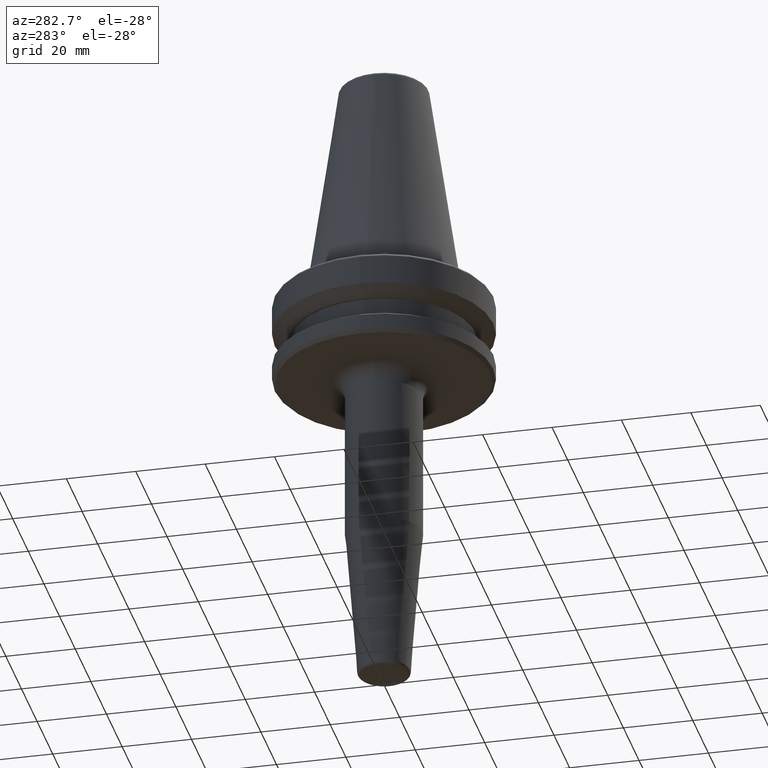
[diagram: clean part render]
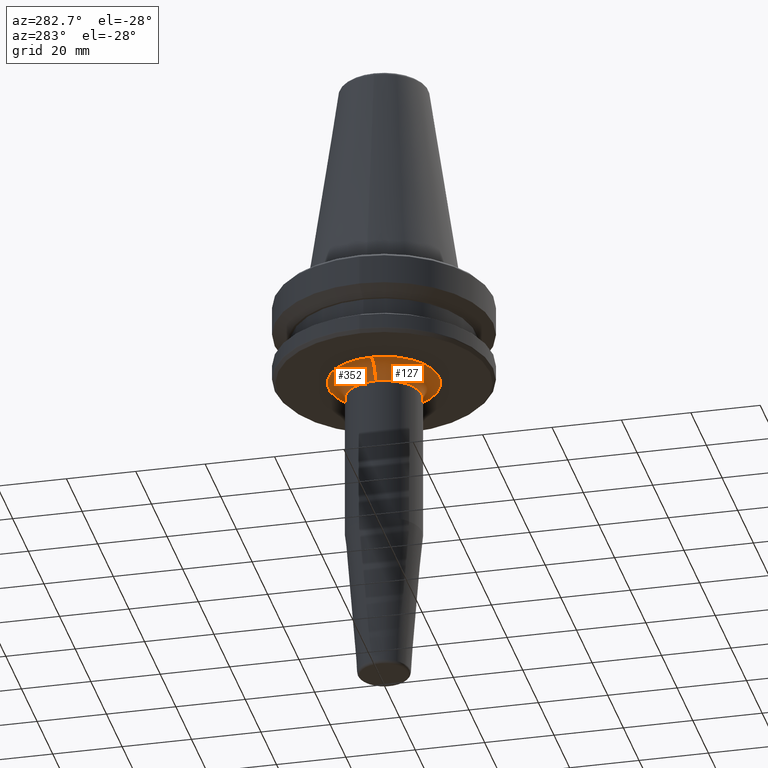
[diagram: same view with one multi-face feature highlighted, each face labeled with its STEP entity id]
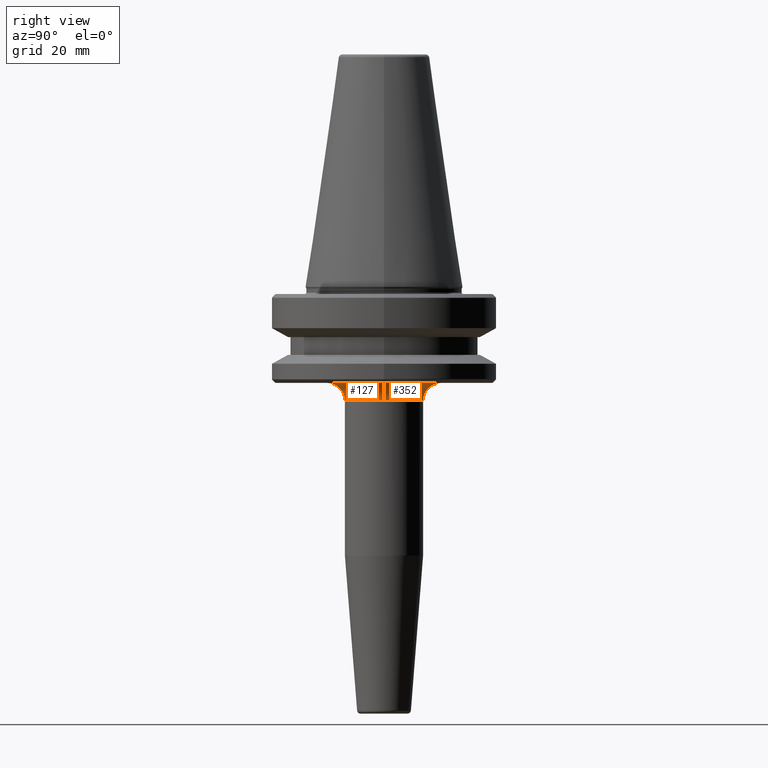
[diagram: same view with one multi-face feature highlighted, each face labeled with its STEP entity id]
A machine part, auxiliary view. The highlighted faces form ONE feature: a constant-radius fillet chain: 2 tangent blend faces with common blend radius 5 mm. The faces share edges in the B-rep.
A second angle (right view) of the same feature is appended — it is thin or edge-on in the first view.
Their STEP definitions:
[1] entity #127 (Torus):
#4 = ORIENTED_EDGE ( 'NONE', *, *, #917, .F. ) ;
#45 = VERTEX_POINT ( 'NONE', #950 ) ;
#47 = CIRCLE ( 'NONE', #189, 11.00000000000001100 ) ;
#65 = DIRECTION ( 'NONE',  ( -1.000000000000000000, 0.0000000000000000000, 0.0000000000000000000 ) ) ;
#104 = AXIS2_PLACEMENT_3D ( 'NONE', #993, #423, #1164 ) ;
#107 = ORIENTED_EDGE ( 'NONE', *, *, #258, .F. ) ;
#110 = CARTESIAN_POINT ( 'NONE',  ( 16.00000000000001100, 2.235968026830329600E-015, -27.00000000000000400 ) ) ;
#127 = ADVANCED_FACE ( 'NONE', ( #434 ), #691, .F. ) ;
#130 = CARTESIAN_POINT ( 'NONE',  ( 0.0000000000000000000, 2.765331481945631400E-016, -32.00000000000000000 ) ) ;
#166 = DIRECTION ( 'NONE',  ( -0.0000000000000000000, -0.0000000000000000000, 1.000000000000000000 ) ) ;
#171 = VERTEX_POINT ( 'NONE', #368 ) ;
#189 = AXIS2_PLACEMENT_3D ( 'NONE', #589, #699, #65 ) ;
#209 = VERTEX_POINT ( 'NONE', #717 ) ;
#210 = DIRECTION ( 'NONE',  ( -0.0000000000000000000, -1.000000000000000000, -0.0000000000000000000 ) ) ;
#236 = DIRECTION ( 'NONE',  ( -1.224646799147353200E-016, 1.000000000000000000, 0.0000000000000000000 ) ) ;
#258 = EDGE_CURVE ( 'NONE', #209, #840, #499, .T. ) ;
#368 = CARTESIAN_POINT ( 'NONE',  ( 11.00000000000001100, 1.929806327043491700E-015, -32.00000000000000000 ) ) ;
#372 = CARTESIAN_POINT ( 'NONE',  ( 0.0000000000000000000, 2.765331481945631400E-016, -27.00000000000000400 ) ) ;
#376 = EDGE_LOOP ( 'NONE', ( #944, #931, #4, #107, #897 ) ) ;
#388 = CARTESIAN_POINT ( 'NONE',  ( -16.00000000000001100, 2.765331481945631400E-016, -27.00000000000000400 ) ) ;
#403 = VERTEX_POINT ( 'NONE', #110 ) ;
#423 = DIRECTION ( 'NONE',  ( 0.0000000000000000000, 0.0000000000000000000, -1.000000000000000000 ) ) ;
#431 = CIRCLE ( 'NONE', #977, 5.000000000000000900 ) ;
#432 = DIRECTION ( 'NONE',  ( -1.000000000000000000, 0.0000000000000000000, 0.0000000000000000000 ) ) ;
#434 = FACE_OUTER_BOUND ( 'NONE', #376, .T. ) ;
#497 = CARTESIAN_POINT ( 'NONE',  ( 16.00000000000001100, 2.235968026830329600E-015, -32.00000000000000000 ) ) ;
#499 = CIRCLE ( 'NONE', #1047, 4.999999999999997300 ) ;
#525 = CARTESIAN_POINT ( 'NONE',  ( -16.00000000000001100, 2.765331481945631400E-016, -32.00000000000000000 ) ) ;
#549 = DIRECTION ( 'NONE',  ( 0.0000000000000000000, 0.0000000000000000000, -1.000000000000000000 ) ) ;
#584 = EDGE_CURVE ( 'NONE', #171, #403, #431, .T. ) ;
#589 = CARTESIAN_POINT ( 'NONE',  ( 0.0000000000000000000, 2.765331481945631400E-016, -32.00000000000000000 ) ) ;
#633 = DIRECTION ( 'NONE',  ( 0.0000000000000000000, 0.0000000000000000000, -1.000000000000000000 ) ) ;
#691 = TOROIDAL_SURFACE ( 'NONE', #1189, 16.00000000000001100, 5.000000000000000000 ) ;
#699 = DIRECTION ( 'NONE',  ( 0.0000000000000000000, 0.0000000000000000000, -1.000000000000000000 ) ) ;
#705 = EDGE_CURVE ( 'NONE', #171, #45, #47, .T. ) ;
#717 = CARTESIAN_POINT ( 'NONE',  ( -11.00000000000001100, 2.765331481945631400E-016, -32.00000000000000000 ) ) ;
#791 = CIRCLE ( 'NONE', #104, 11.00000000000001100 ) ;
#840 = VERTEX_POINT ( 'NONE', #388 ) ;
#853 = CIRCLE ( 'NONE', #1103, 16.00000000000001100 ) ;
#897 = ORIENTED_EDGE ( 'NONE', *, *, #967, .F. ) ;
#917 = EDGE_CURVE ( 'NONE', #840, #403, #853, .T. ) ;
#931 = ORIENTED_EDGE ( 'NONE', *, *, #584, .T. ) ;
#944 = ORIENTED_EDGE ( 'NONE', *, *, #705, .F. ) ;
#950 = CARTESIAN_POINT ( 'NONE',  ( 1.347111479062090400E-015, -11.00000000000001100, -32.00000000000000000 ) ) ;
#967 = EDGE_CURVE ( 'NONE', #45, #209, #791, .T. ) ;
#977 = AXIS2_PLACEMENT_3D ( 'NONE', #497, #236, #1108 ) ;
#993 = CARTESIAN_POINT ( 'NONE',  ( 0.0000000000000000000, 2.765331481945631400E-016, -32.00000000000000000 ) ) ;
#1047 = AXIS2_PLACEMENT_3D ( 'NONE', #525, #210, #633 ) ;
#1103 = AXIS2_PLACEMENT_3D ( 'NONE', #372, #166, #1176 ) ;
#1108 = DIRECTION ( 'NONE',  ( -1.000000000000000000, -1.224646799147353000E-016, 0.0000000000000000000 ) ) ;
#1164 = DIRECTION ( 'NONE',  ( -1.000000000000000000, 0.0000000000000000000, 0.0000000000000000000 ) ) ;
#1176 = DIRECTION ( 'NONE',  ( -1.000000000000000000, 0.0000000000000000000, 0.0000000000000000000 ) ) ;
#1189 = AXIS2_PLACEMENT_3D ( 'NONE', #130, #549, #432 ) ;
[2] entity #352 (Torus):
#10 = ORIENTED_EDGE ( 'NONE', *, *, #446, .F. ) ;
#53 = CARTESIAN_POINT ( 'NONE',  ( 0.0000000000000000000, 2.765331481945631400E-016, -27.00000000000000400 ) ) ;
#54 = CIRCLE ( 'NONE', #1223, 11.00000000000001100 ) ;
#70 = ORIENTED_EDGE ( 'NONE', *, *, #258, .T. ) ;
#110 = CARTESIAN_POINT ( 'NONE',  ( 16.00000000000001100, 2.235968026830329600E-015, -27.00000000000000400 ) ) ;
#171 = VERTEX_POINT ( 'NONE', #368 ) ;
#193 = EDGE_LOOP ( 'NONE', ( #198, #10, #698, #70, #1160 ) ) ;
#198 = ORIENTED_EDGE ( 'NONE', *, *, #584, .F. ) ;
#209 = VERTEX_POINT ( 'NONE', #717 ) ;
#210 = DIRECTION ( 'NONE',  ( -0.0000000000000000000, -1.000000000000000000, -0.0000000000000000000 ) ) ;
#215 = DIRECTION ( 'NONE',  ( -1.000000000000000000, 0.0000000000000000000, 0.0000000000000000000 ) ) ;
#236 = DIRECTION ( 'NONE',  ( -1.224646799147353200E-016, 1.000000000000000000, 0.0000000000000000000 ) ) ;
#258 = EDGE_CURVE ( 'NONE', #209, #840, #499, .T. ) ;
#271 = VERTEX_POINT ( 'NONE', #760 ) ;
#302 = AXIS2_PLACEMENT_3D ( 'NONE', #53, #1041, #672 ) ;
#317 = EDGE_CURVE ( 'NONE', #403, #840, #473, .T. ) ;
#352 = ADVANCED_FACE ( 'NONE', ( #876 ), #392, .F. ) ;
#358 = CIRCLE ( 'NONE', #1258, 11.00000000000001100 ) ;
#362 = EDGE_CURVE ( 'NONE', #209, #271, #358, .T. ) ;
#363 = DIRECTION ( 'NONE',  ( 0.0000000000000000000, 0.0000000000000000000, -1.000000000000000000 ) ) ;
#368 = CARTESIAN_POINT ( 'NONE',  ( 11.00000000000001100, 1.929806327043491700E-015, -32.00000000000000000 ) ) ;
#388 = CARTESIAN_POINT ( 'NONE',  ( -16.00000000000001100, 2.765331481945631400E-016, -27.00000000000000400 ) ) ;
#392 = TOROIDAL_SURFACE ( 'NONE', #452, 16.00000000000001100, 5.000000000000000000 ) ;
#403 = VERTEX_POINT ( 'NONE', #110 ) ;
#431 = CIRCLE ( 'NONE', #977, 5.000000000000000900 ) ;
#446 = EDGE_CURVE ( 'NONE', #271, #171, #54, .T. ) ;
#452 = AXIS2_PLACEMENT_3D ( 'NONE', #573, #916, #640 ) ;
#473 = CIRCLE ( 'NONE', #302, 16.00000000000001100 ) ;
#497 = CARTESIAN_POINT ( 'NONE',  ( 16.00000000000001100, 2.235968026830329600E-015, -32.00000000000000000 ) ) ;
#499 = CIRCLE ( 'NONE', #1047, 4.999999999999997300 ) ;
#525 = CARTESIAN_POINT ( 'NONE',  ( -16.00000000000001100, 2.765331481945631400E-016, -32.00000000000000000 ) ) ;
#573 = CARTESIAN_POINT ( 'NONE',  ( 0.0000000000000000000, 2.765331481945631400E-016, -32.00000000000000000 ) ) ;
#584 = EDGE_CURVE ( 'NONE', #171, #403, #431, .T. ) ;
#618 = DIRECTION ( 'NONE',  ( 0.0000000000000000000, 0.0000000000000000000, -1.000000000000000000 ) ) ;
#623 = DIRECTION ( 'NONE',  ( -1.000000000000000000, 0.0000000000000000000, 0.0000000000000000000 ) ) ;
#633 = DIRECTION ( 'NONE',  ( 0.0000000000000000000, 0.0000000000000000000, -1.000000000000000000 ) ) ;
#640 = DIRECTION ( 'NONE',  ( -1.000000000000000000, 0.0000000000000000000, 0.0000000000000000000 ) ) ;
#672 = DIRECTION ( 'NONE',  ( -1.000000000000000000, 0.0000000000000000000, 0.0000000000000000000 ) ) ;
#698 = ORIENTED_EDGE ( 'NONE', *, *, #362, .F. ) ;
#717 = CARTESIAN_POINT ( 'NONE',  ( -11.00000000000001100, 2.765331481945631400E-016, -32.00000000000000000 ) ) ;
#760 = CARTESIAN_POINT ( 'NONE',  ( 0.0000000000000000000, 11.00000000000001100, -32.00000000000000000 ) ) ;
#840 = VERTEX_POINT ( 'NONE', #388 ) ;
#876 = FACE_OUTER_BOUND ( 'NONE', #193, .T. ) ;
#916 = DIRECTION ( 'NONE',  ( 0.0000000000000000000, 0.0000000000000000000, -1.000000000000000000 ) ) ;
#929 = CARTESIAN_POINT ( 'NONE',  ( 0.0000000000000000000, 2.765331481945631400E-016, -32.00000000000000000 ) ) ;
#977 = AXIS2_PLACEMENT_3D ( 'NONE', #497, #236, #1108 ) ;
#999 = CARTESIAN_POINT ( 'NONE',  ( 0.0000000000000000000, 2.765331481945631400E-016, -32.00000000000000000 ) ) ;
#1041 = DIRECTION ( 'NONE',  ( -0.0000000000000000000, -0.0000000000000000000, 1.000000000000000000 ) ) ;
#1047 = AXIS2_PLACEMENT_3D ( 'NONE', #525, #210, #633 ) ;
#1108 = DIRECTION ( 'NONE',  ( -1.000000000000000000, -1.224646799147353000E-016, 0.0000000000000000000 ) ) ;
#1160 = ORIENTED_EDGE ( 'NONE', *, *, #317, .F. ) ;
#1223 = AXIS2_PLACEMENT_3D ( 'NONE', #929, #363, #215 ) ;
#1258 = AXIS2_PLACEMENT_3D ( 'NONE', #999, #618, #623 ) ;